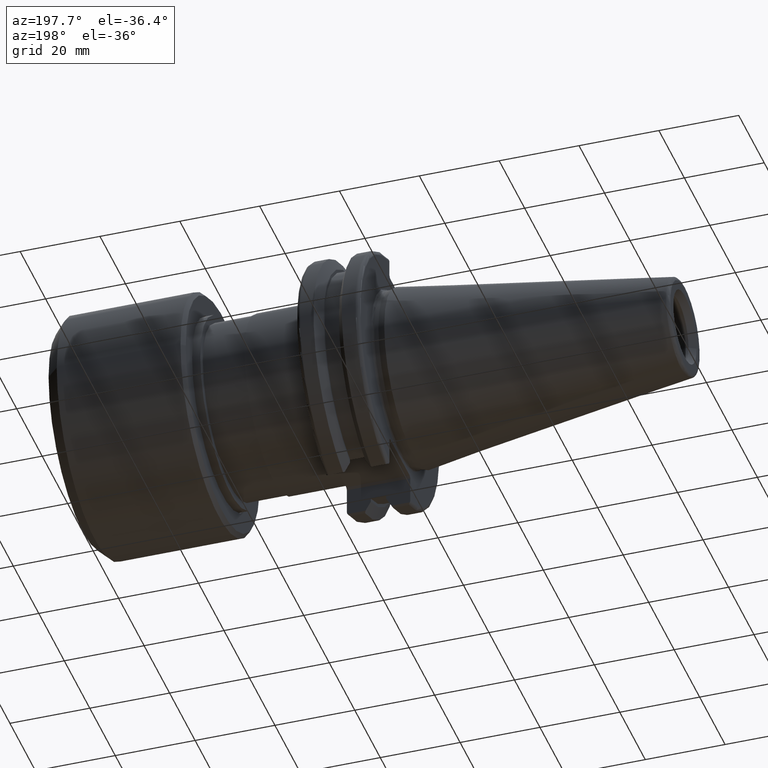
[diagram: clean part render]
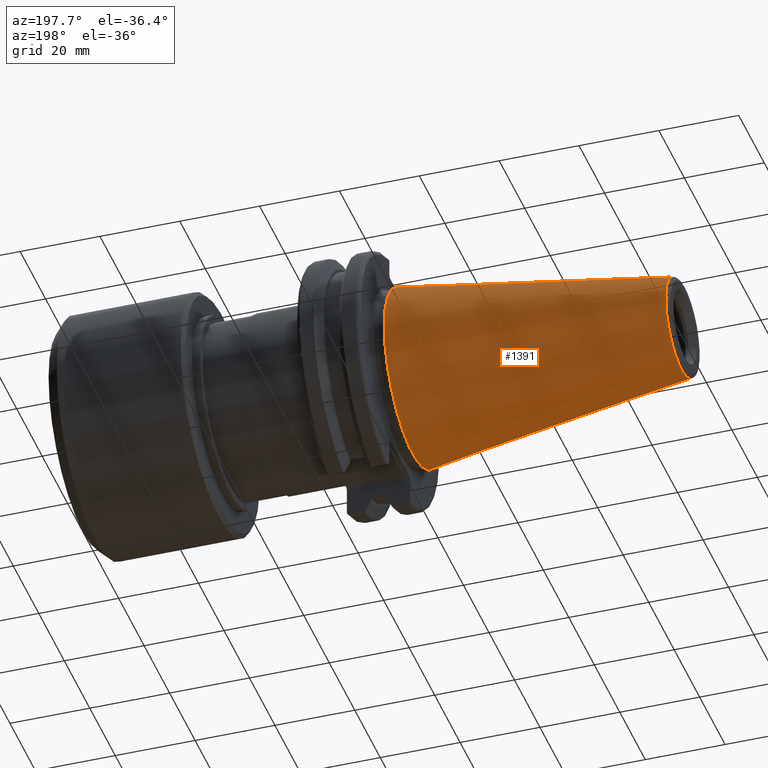
[diagram: same view with one face highlighted and labeled with its STEP entity id]
A machine part, auxiliary view. The second image highlights one B-rep face of the part: STEP entity #1391.
In plain terms, the highlighted conical surface has half-angle 8.297 deg.
Its self-contained STEP definition (entity closure, byte-faithful):
#383=FACE_OUTER_BOUND('',#462,.T.);
#462=EDGE_LOOP('',(#1177,#1178,#1179,#1180,#1181));
#558=LINE('',#2466,#635);
#635=VECTOR('',#1899,17.2484375);
#690=CIRCLE('',#1602,12.3966635780937);
#691=CIRCLE('',#1603,12.3966635780937);
#695=CIRCLE('',#1609,22.225);
#806=VERTEX_POINT('',#2453);
#807=VERTEX_POINT('',#2454);
#810=VERTEX_POINT('',#2464);
#944=EDGE_CURVE('',#806,#807,#690,.T.);
#945=EDGE_CURVE('',#807,#806,#691,.T.);
#949=EDGE_CURVE('',#810,#810,#695,.T.);
#950=EDGE_CURVE('',#810,#807,#558,.T.);
#1177=ORIENTED_EDGE('',*,*,#949,.F.);
#1178=ORIENTED_EDGE('',*,*,#950,.T.);
#1179=ORIENTED_EDGE('',*,*,#944,.F.);
#1180=ORIENTED_EDGE('',*,*,#945,.F.);
#1181=ORIENTED_EDGE('',*,*,#950,.F.);
#1349=CONICAL_SURFACE('',#1608,17.2484375,0.144812498238939);
#1391=ADVANCED_FACE('',(#383),#1349,.T.);
#1602=AXIS2_PLACEMENT_3D('',#2455,#1883,#1884);
#1603=AXIS2_PLACEMENT_3D('',#2456,#1885,#1886);
#1608=AXIS2_PLACEMENT_3D('',#2463,#1895,#1896);
#1609=AXIS2_PLACEMENT_3D('',#2465,#1897,#1898);
#1883=DIRECTION('center_axis',(-1.,0.,0.));
#1884=DIRECTION('ref_axis',(0.,-1.,3.06161699786838E-17));
#1885=DIRECTION('center_axis',(-1.,0.,0.));
#1886=DIRECTION('ref_axis',(0.,-1.,3.06161699786838E-17));
#1895=DIRECTION('center_axis',(1.,0.,0.));
#1896=DIRECTION('ref_axis',(0.,1.,0.));
#1897=DIRECTION('center_axis',(1.,0.,0.));
#1898=DIRECTION('ref_axis',(0.,0.,-1.));
#1899=DIRECTION('',(-0.989532981063282,0.144306893071729,1.76724974695192E-17));
#2453=CARTESIAN_POINT('',(-67.3943068930717,-1.5181534371019E-15,12.3966635780937));
#2454=CARTESIAN_POINT('',(-67.3943068930718,-12.3966635780937,-1.5181534371019E-15));
#2455=CARTESIAN_POINT('Origin',(-67.3943068930717,0.,-1.89769179637738E-15));
#2456=CARTESIAN_POINT('Origin',(-67.3943068930717,0.,-1.89769179637738E-15));
#2463=CARTESIAN_POINT('Origin',(-34.125,0.,0.));
#2464=CARTESIAN_POINT('',(0.,-22.225,-2.72177751110499E-15));
#2465=CARTESIAN_POINT('Origin',(0.,0.,0.));
#2466=CARTESIAN_POINT('',(-34.125,-17.2484375,-2.11232437746682E-15));